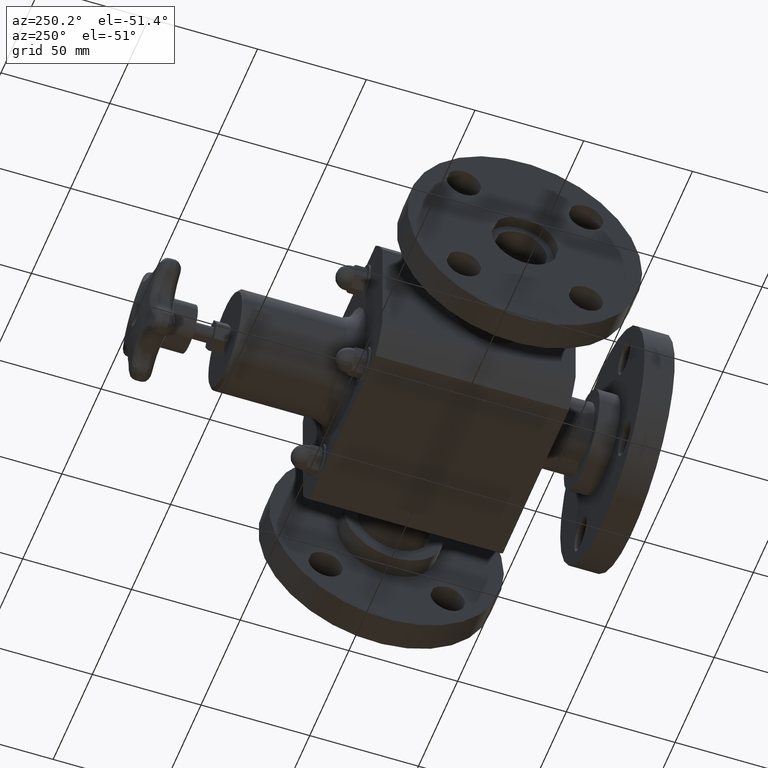
[diagram: clean part render]
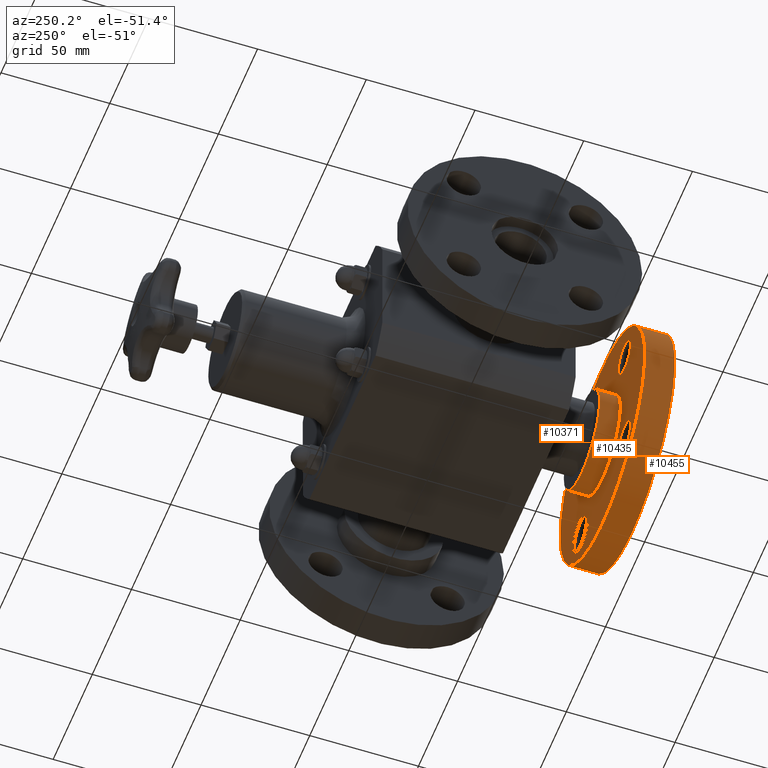
[diagram: same view with one multi-face feature highlighted, each face labeled with its STEP entity id]
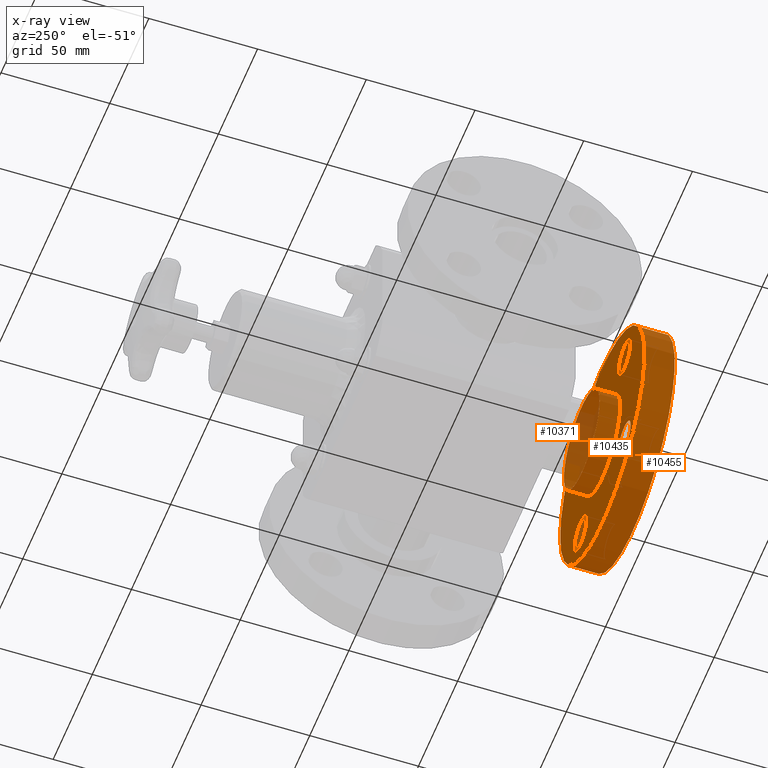
[diagram: x-ray of the same camera — body ghosted, the whole feature saturated]
A machine part, auxiliary view. The highlighted faces form ONE feature: a stepped (counterbored) hole: 2 coaxial cylindrical walls of radii 22.86 -> 53.975 mm joined by 1 annular planar shoulder face(s). The faces share edges in the B-rep.
The next image is the same camera in x-ray: the body ghosted and the whole hole feature saturated, so the bore chain is visible through the body.
Their STEP definitions:
[1] entity #10455 (Cylinder):
#10377=CARTESIAN_POINT('',(2.124999999999999,-1.205000000000002,1.207568E-016));
#10378=VERTEX_POINT('',#10377);
#10379=CARTESIAN_POINT('',(-1.194356E-015,-1.205000000000003,-1.701621E-015));
#10380=DIRECTION('',(0.0,1.0,0.0));
#10381=DIRECTION('',(1.0,0.0,0.0));
#10382=AXIS2_PLACEMENT_3D('',#10379,#10380,#10381);
#10383=CIRCLE('',#10382,2.125000000000000);
#10384=EDGE_CURVE('',#10378,#10378,#10383,.T.);
#10436=CARTESIAN_POINT('',(-1.058215E-015,-1.477500000000003,-1.706714E-015));
#10437=DIRECTION('',(-4.996004E-016,1.0,1.869111E-017));
#10438=DIRECTION('',(1.0,0.0,0.0));
#10439=AXIS2_PLACEMENT_3D('',#10436,#10437,#10438);
#10440=CYLINDRICAL_SURFACE('',#10439,2.125000000000000);
#10441=ORIENTED_EDGE('',*,*,#10384,.F.);
#10442=EDGE_LOOP('',(#10441));
#10443=FACE_OUTER_BOUND('',#10442,.T.);
#10444=CARTESIAN_POINT('',(2.124999999999999,-1.750000000000002,1.105701E-016));
#10445=VERTEX_POINT('',#10444);
#10446=CARTESIAN_POINT('',(-9.220739E-016,-1.750000000000003,-1.711808E-015));
#10447=DIRECTION('',(0.0,1.0,0.0));
#10448=DIRECTION('',(1.0,0.0,0.0));
#10449=AXIS2_PLACEMENT_3D('',#10446,#10447,#10448);
#10450=CIRCLE('',#10449,2.125000000000000);
#10451=EDGE_CURVE('',#10445,#10445,#10450,.T.);
#10452=ORIENTED_EDGE('',*,*,#10451,.T.);
#10453=EDGE_LOOP('',(#10452));
#10454=FACE_BOUND('',#10453,.T.);
#10455=ADVANCED_FACE('',(#10443,#10454),#10440,.T.);
[2] entity #10371 (Cylinder):
#10329=CARTESIAN_POINT('',(0.899999999999999,-0.830000000000003,-9.227813E-016));
#10330=VERTEX_POINT('',#10329);
#10331=CARTESIAN_POINT('',(-1.381706E-015,-0.830000000000003,-1.694612E-015));
#10332=DIRECTION('',(0.0,1.0,0.0));
#10333=DIRECTION('',(1.0,0.0,0.0));
#10334=AXIS2_PLACEMENT_3D('',#10331,#10332,#10333);
#10335=CIRCLE('',#10334,0.900000000000000);
#10336=EDGE_CURVE('',#10330,#10330,#10335,.T.);
#10352=CARTESIAN_POINT('',(-1.288031E-015,-1.017500000000003,-1.698117E-015));
#10353=DIRECTION('',(-4.996004E-016,1.0,1.869111E-017));
#10354=DIRECTION('',(1.0,0.0,0.0));
#10355=AXIS2_PLACEMENT_3D('',#10352,#10353,#10354);
#10356=CYLINDRICAL_SURFACE('',#10355,0.900000000000000);
#10357=ORIENTED_EDGE('',*,*,#10336,.F.);
#10358=EDGE_LOOP('',(#10357));
#10359=FACE_OUTER_BOUND('',#10358,.T.);
#10360=CARTESIAN_POINT('',(0.899999999999999,-1.205000000000003,-9.297905E-016));
#10361=VERTEX_POINT('',#10360);
#10362=CARTESIAN_POINT('',(-1.194356E-015,-1.205000000000003,-1.701621E-015));
#10363=DIRECTION('',(0.0,1.0,0.0));
#10364=DIRECTION('',(1.0,0.0,0.0));
#10365=AXIS2_PLACEMENT_3D('',#10362,#10363,#10364);
#10366=CIRCLE('',#10365,0.900000000000000);
#10367=EDGE_CURVE('',#10361,#10361,#10366,.T.);
#10368=ORIENTED_EDGE('',*,*,#10367,.T.);
#10369=EDGE_LOOP('',(#10368));
#10370=FACE_BOUND('',#10369,.T.);
#10371=ADVANCED_FACE('',(#10359,#10370),#10356,.T.);
[3] entity #10435 (Plane):
#10360=CARTESIAN_POINT('',(0.899999999999999,-1.205000000000003,-9.297905E-016));
#10361=VERTEX_POINT('',#10360);
#10362=CARTESIAN_POINT('',(-1.194356E-015,-1.205000000000003,-1.701621E-015));
#10363=DIRECTION('',(0.0,1.0,0.0));
#10364=DIRECTION('',(1.0,0.0,0.0));
#10365=AXIS2_PLACEMENT_3D('',#10362,#10363,#10364);
#10366=CIRCLE('',#10365,0.900000000000000);
#10367=EDGE_CURVE('',#10361,#10361,#10366,.T.);
#10372=CARTESIAN_POINT('',(1.512499999999999,-1.205000000000003,-4.045168E-016));
#10373=DIRECTION('',(0.0,1.0,0.0));
#10374=DIRECTION('',(0.0,0.0,-1.0));
#10375=AXIS2_PLACEMENT_3D('',#10372,#10373,#10374);
#10376=PLANE('',#10375);
#10377=CARTESIAN_POINT('',(2.124999999999999,-1.205000000000002,1.207568E-016));
#10378=VERTEX_POINT('',#10377);
#10379=CARTESIAN_POINT('',(-1.194356E-015,-1.205000000000003,-1.701621E-015));
#10380=DIRECTION('',(0.0,1.0,0.0));
#10381=DIRECTION('',(1.0,0.0,0.0));
#10382=AXIS2_PLACEMENT_3D('',#10379,#10380,#10381);
#10383=CIRCLE('',#10382,2.125000000000000);
#10384=EDGE_CURVE('',#10378,#10378,#10383,.T.);
#10385=ORIENTED_EDGE('',*,*,#10384,.T.);
#10386=EDGE_LOOP('',(#10385));
#10387=FACE_OUTER_BOUND('',#10386,.T.);
#10388=CARTESIAN_POINT('',(1.104854345603978,-1.205000000000003,0.792354345603980));
#10389=VERTEX_POINT('',#10388);
#10390=CARTESIAN_POINT('',(1.104854345603978,-1.205000000000003,1.104854345603980));
#10391=DIRECTION('',(0.0,-1.0,0.0));
#10392=DIRECTION('',(0.0,0.0,1.0));
#10393=AXIS2_PLACEMENT_3D('',#10390,#10391,#10392);
#10394=CIRCLE('',#10393,0.312500000000000);
#10395=EDGE_CURVE('',#10389,#10389,#10394,.T.);
#10396=ORIENTED_EDGE('',*,*,#10395,.T.);
#10397=EDGE_LOOP('',(#10396));
#10398=FACE_BOUND('',#10397,.T.);
#10399=CARTESIAN_POINT('',(-0.792354345603982,-1.205000000000003,1.104854345603978));
#10400=VERTEX_POINT('',#10399);
#10401=CARTESIAN_POINT('',(-1.104854345603983,-1.205000000000004,1.104854345603978));
#10402=DIRECTION('',(0.0,-1.0,0.0));
#10403=DIRECTION('',(-1.0,0.0,0.0));
#10404=AXIS2_PLACEMENT_3D('',#10401,#10402,#10403);
#10405=CIRCLE('',#10404,0.312500000000000);
#10406=EDGE_CURVE('',#10400,#10400,#10405,.T.);
#10407=ORIENTED_EDGE('',*,*,#10406,.T.);
#10408=EDGE_LOOP('',(#10407));
#10409=FACE_BOUND('',#10408,.T.);
#10410=CARTESIAN_POINT('',(-1.104854345603981,-1.205000000000004,-0.792354345603983));
#10411=VERTEX_POINT('',#10410);
#10412=CARTESIAN_POINT('',(-1.104854345603981,-1.205000000000004,-1.104854345603983));
#10413=DIRECTION('',(0.0,-1.0,0.0));
#10414=DIRECTION('',(0.0,0.0,-1.0));
#10415=AXIS2_PLACEMENT_3D('',#10412,#10413,#10414);
#10416=CIRCLE('',#10415,0.312500000000000);
#10417=EDGE_CURVE('',#10411,#10411,#10416,.T.);
#10418=ORIENTED_EDGE('',*,*,#10417,.T.);
#10419=EDGE_LOOP('',(#10418));
#10420=FACE_BOUND('',#10419,.T.);
#10421=CARTESIAN_POINT('',(0.792354345603980,-1.205000000000003,-1.104854345603981));
#10422=VERTEX_POINT('',#10421);
#10423=CARTESIAN_POINT('',(1.104854345603980,-1.205000000000003,-1.104854345603981));
#10424=DIRECTION('',(0.0,-1.0,0.0));
#10425=DIRECTION('',(1.0,0.0,0.0));
#10426=AXIS2_PLACEMENT_3D('',#10423,#10424,#10425);
#10427=CIRCLE('',#10426,0.312500000000000);
#10428=EDGE_CURVE('',#10422,#10422,#10427,.T.);
#10429=ORIENTED_EDGE('',*,*,#10428,.T.);
#10430=EDGE_LOOP('',(#10429));
#10431=FACE_BOUND('',#10430,.T.);
#10432=ORIENTED_EDGE('',*,*,#10367,.F.);
#10433=EDGE_LOOP('',(#10432));
#10434=FACE_BOUND('',#10433,.T.);
#10435=ADVANCED_FACE('',(#10387,#10398,#10409,#10420,#10431,#10434),#10376,.T.);